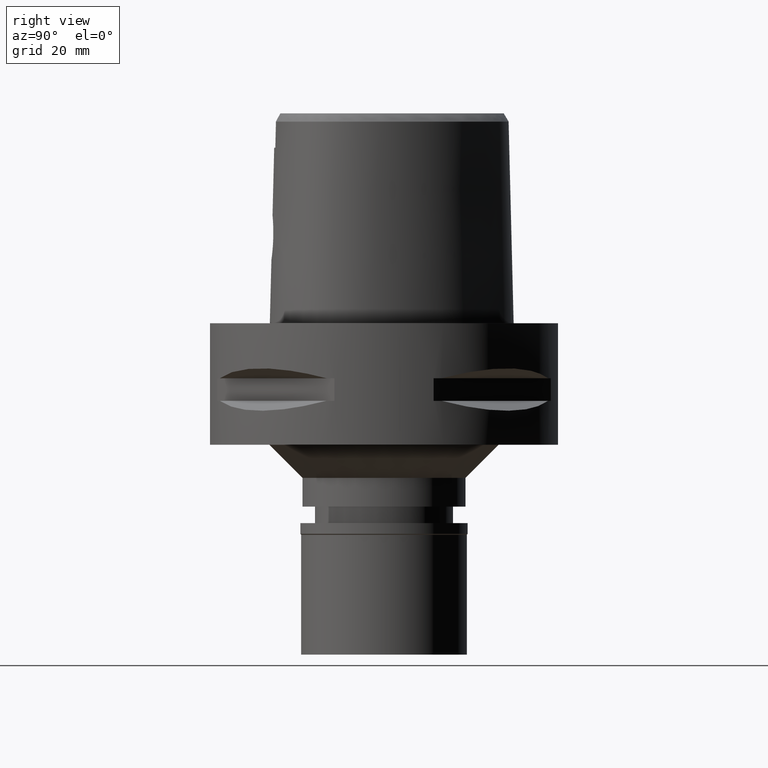
[diagram: clean part render]
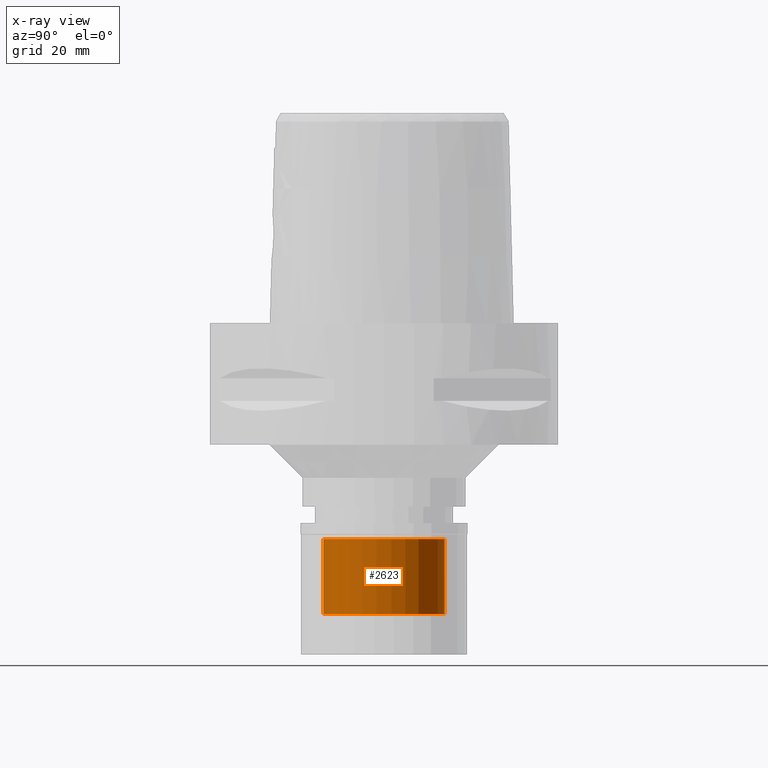
[diagram: x-ray — body ghosted, one internal face saturated and labeled with its STEP entity id]
A machine part, right view, then the same camera in x-ray: the body is ghosted and one INTERNAL B-rep face — a face not visible from any outside direction — is saturated and labeled: STEP entity #2623.
In plain terms, the highlighted cylindrical surface (partial cylindrical patch) has radius 11 mm, axis along (0, 0, -1).
Its self-contained STEP definition (entity closure, byte-faithful):
#17 = CIRCLE ( 'NONE', #2992, 11.00000000000000000 ) ;
#195 = VERTEX_POINT ( 'NONE', #3804 ) ;
#604 = DIRECTION ( 'NONE',  ( 0.0000000000000000000, 0.0000000000000000000, 1.000000000000000000 ) ) ;
#733 = ORIENTED_EDGE ( 'NONE', *, *, #2085, .T. ) ;
#823 = CARTESIAN_POINT ( 'NONE',  ( 0.0000000000000000000, 11.00000000000000000, -16.50000000000000000 ) ) ;
#946 = VECTOR ( 'NONE', #3346, 1000.000000000000000 ) ;
#1395 = CARTESIAN_POINT ( 'NONE',  ( 0.0000000000000000000, -11.00000000000000000, -2.899999999999999911 ) ) ;
#1413 = CARTESIAN_POINT ( 'NONE',  ( 0.0000000000000000000, 0.0000000000000000000, -2.899999999999999911 ) ) ;
#1458 = ORIENTED_EDGE ( 'NONE', *, *, #2216, .T. ) ;
#1492 = DIRECTION ( 'NONE',  ( 0.0000000000000000000, 0.0000000000000000000, -1.000000000000000000 ) ) ;
#1494 = VERTEX_POINT ( 'NONE', #2366 ) ;
#1661 = CIRCLE ( 'NONE', #4453, 11.00000000000000000 ) ;
#1777 = DIRECTION ( 'NONE',  ( 0.0000000000000000000, -1.000000000000000000, 0.0000000000000000000 ) ) ;
#1795 = EDGE_CURVE ( 'NONE', #3603, #195, #2604, .T. ) ;
#1839 = LINE ( 'NONE', #3326, #946 ) ;
#2085 = EDGE_CURVE ( 'NONE', #1494, #3793, #1839, .T. ) ;
#2216 = EDGE_CURVE ( 'NONE', #3603, #1494, #17, .T. ) ;
#2302 = DIRECTION ( 'NONE',  ( 0.0000000000000000000, 1.000000000000000000, 0.0000000000000000000 ) ) ;
#2366 = CARTESIAN_POINT ( 'NONE',  ( 0.0000000000000000000, -11.00000000000000000, -16.50000000000000000 ) ) ;
#2595 = EDGE_CURVE ( 'NONE', #3793, #195, #1661, .T. ) ;
#2604 = LINE ( 'NONE', #3718, #3445 ) ;
#2619 = CARTESIAN_POINT ( 'NONE',  ( 0.0000000000000000000, 0.0000000000000000000, -16.50000000000000000 ) ) ;
#2623 = ADVANCED_FACE ( 'NONE', ( #4359 ), #3176, .F. ) ;
#2982 = ORIENTED_EDGE ( 'NONE', *, *, #2595, .T. ) ;
#2992 = AXIS2_PLACEMENT_3D ( 'NONE', #2619, #1492, #2302 ) ;
#3176 = CYLINDRICAL_SURFACE ( 'NONE', #3905, 11.00000000000000000 ) ;
#3298 = ORIENTED_EDGE ( 'NONE', *, *, #1795, .F. ) ;
#3326 = CARTESIAN_POINT ( 'NONE',  ( 0.0000000000000000000, -11.00000000000000000, -16.50000000000000000 ) ) ;
#3346 = DIRECTION ( 'NONE',  ( 0.0000000000000000000, 0.0000000000000000000, 1.000000000000000000 ) ) ;
#3445 = VECTOR ( 'NONE', #3737, 1000.000000000000000 ) ;
#3577 = DIRECTION ( 'NONE',  ( 0.0000000000000000000, -1.000000000000000000, 0.0000000000000000000 ) ) ;
#3603 = VERTEX_POINT ( 'NONE', #823 ) ;
#3718 = CARTESIAN_POINT ( 'NONE',  ( 0.0000000000000000000, 11.00000000000000000, -16.50000000000000000 ) ) ;
#3737 = DIRECTION ( 'NONE',  ( 0.0000000000000000000, 0.0000000000000000000, 1.000000000000000000 ) ) ;
#3793 = VERTEX_POINT ( 'NONE', #1395 ) ;
#3804 = CARTESIAN_POINT ( 'NONE',  ( 0.0000000000000000000, 11.00000000000000000, -2.899999999999999911 ) ) ;
#3905 = AXIS2_PLACEMENT_3D ( 'NONE', #4309, #4285, #3577 ) ;
#4230 = EDGE_LOOP ( 'NONE', ( #1458, #733, #2982, #3298 ) ) ;
#4285 = DIRECTION ( 'NONE',  ( 0.0000000000000000000, 0.0000000000000000000, -1.000000000000000000 ) ) ;
#4309 = CARTESIAN_POINT ( 'NONE',  ( 0.0000000000000000000, 0.0000000000000000000, 0.0000000000000000000 ) ) ;
#4359 = FACE_OUTER_BOUND ( 'NONE', #4230, .T. ) ;
#4453 = AXIS2_PLACEMENT_3D ( 'NONE', #1413, #604, #1777 ) ;